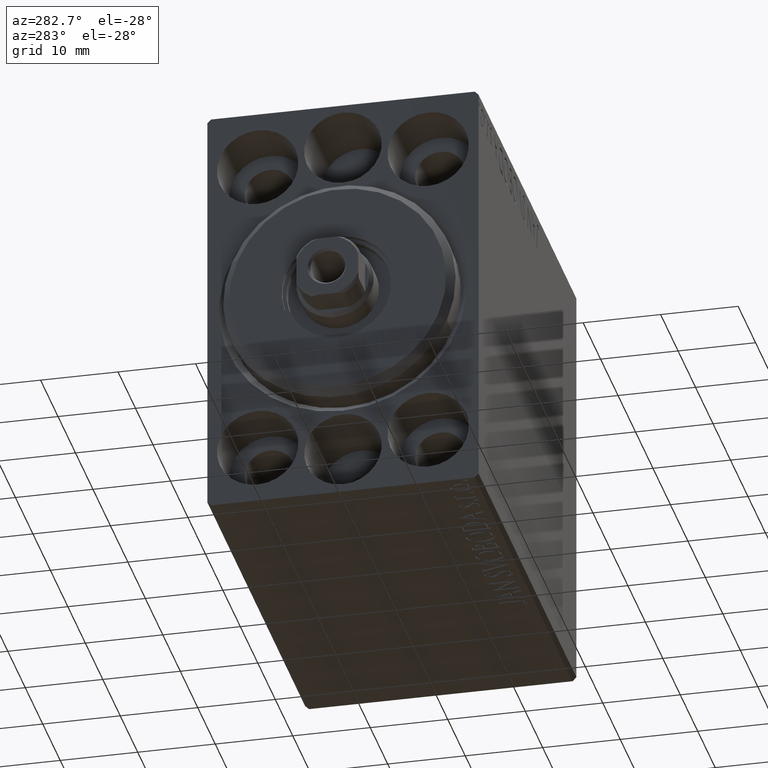
[diagram: clean part render]
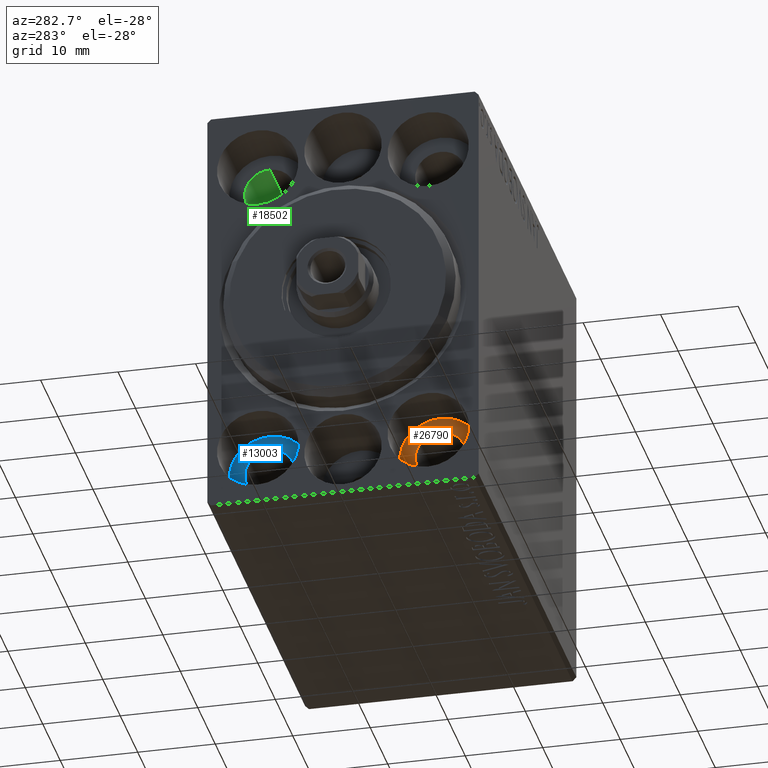
[diagram: same view with three faces highlighted in distinct colors, each labeled with its STEP entity id]
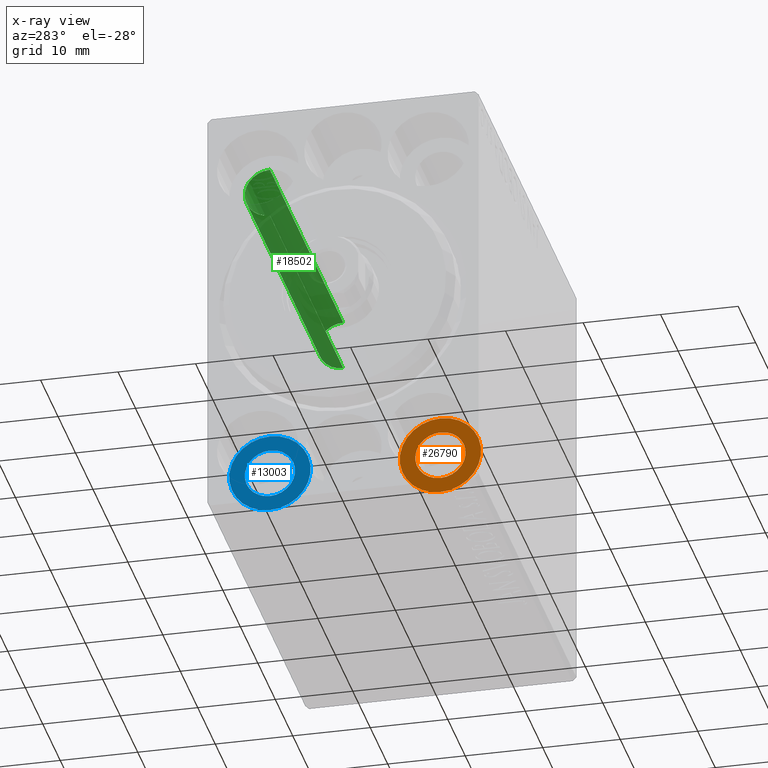
[diagram: x-ray of the same camera — body ghosted, the three highlighted faces saturated]
A machine part, auxiliary view with three faces highlighted in distinct colors.
The next image is the same camera in x-ray (body ghosted, the three faces saturated) — at least one of them is partly hidden behind the body in this view.
Their STEP definitions:

[orange] entity #26790 — the highlighted planar face has unit normal (-1, 0, 0).
#1458 = EDGE_LOOP ( 'NONE', ( #18258, #15358 ) ) ;
#1884 = DIRECTION ( 'NONE',  ( -1.000000000000000000, 0.000000000000000000, 0.000000000000000000 ) ) ;
#4365 = CIRCLE ( 'NONE', #19220, 5.250000000000000888 ) ;
#5809 = DIRECTION ( 'NONE',  ( -1.000000000000000000, 0.000000000000000000, 0.000000000000000000 ) ) ;
#6024 = DIRECTION ( 'NONE',  ( 0.000000000000000000, 0.000000000000000000, 1.000000000000000000 ) ) ;
#6051 = VERTEX_POINT ( 'NONE', #42913 ) ;
#6969 = DIRECTION ( 'NONE',  ( -1.000000000000000000, 0.000000000000000000, 0.000000000000000000 ) ) ;
#8545 = CIRCLE ( 'NONE', #28982, 5.250000000000000888 ) ;
#11522 = AXIS2_PLACEMENT_3D ( 'NONE', #22870, #36389, #6024 ) ;
#11702 = ORIENTED_EDGE ( 'NONE', *, *, #17535, .T. ) ;
#13976 = VERTEX_POINT ( 'NONE', #32333 ) ;
#15358 = ORIENTED_EDGE ( 'NONE', *, *, #27816, .F. ) ;
#16849 = FACE_OUTER_BOUND ( 'NONE', #31404, .T. ) ;
#17535 = EDGE_CURVE ( 'NONE', #33434, #6051, #4365, .T. ) ;
#18075 = DIRECTION ( 'NONE',  ( 0.000000000000000000, 0.000000000000000000, 1.000000000000000000 ) ) ;
#18258 = ORIENTED_EDGE ( 'NONE', *, *, #38337, .F. ) ;
#19220 = AXIS2_PLACEMENT_3D ( 'NONE', #42144, #6969, #34451 ) ;
#22383 = DIRECTION ( 'NONE',  ( -1.000000000000000000, 0.000000000000000000, 0.000000000000000000 ) ) ;
#22646 = PLANE ( 'NONE',  #33250 ) ;
#22870 = CARTESIAN_POINT ( 'NONE',  ( 6.999999999999999112, -11.00000000000000355, -20.00000000000000000 ) ) ;
#24871 = CARTESIAN_POINT ( 'NONE',  ( 7.000000000000000000, -11.00000000000000355, -25.25000000000000000 ) ) ;
#26790 = ADVANCED_FACE ( 'NONE', ( #33709, #16849 ), #22646, .T. ) ;
#27620 = CIRCLE ( 'NONE', #42482, 3.249999999999999556 ) ;
#27816 = EDGE_CURVE ( 'NONE', #42022, #13976, #27620, .T. ) ;
#28982 = AXIS2_PLACEMENT_3D ( 'NONE', #35355, #1884, #18075 ) ;
#29000 = ORIENTED_EDGE ( 'NONE', *, *, #29721, .T. ) ;
#29524 = DIRECTION ( 'NONE',  ( 0.000000000000000000, 0.000000000000000000, 1.000000000000000000 ) ) ;
#29721 = EDGE_CURVE ( 'NONE', #6051, #33434, #8545, .T. ) ;
#30616 = CIRCLE ( 'NONE', #11522, 3.249999999999999556 ) ;
#31404 = EDGE_LOOP ( 'NONE', ( #29000, #11702 ) ) ;
#32333 = CARTESIAN_POINT ( 'NONE',  ( 6.999999999999999112, -11.00000000000000355, -16.75000000000000000 ) ) ;
#33250 = AXIS2_PLACEMENT_3D ( 'NONE', #36166, #5809, #29524 ) ;
#33434 = VERTEX_POINT ( 'NONE', #24871 ) ;
#33709 = FACE_BOUND ( 'NONE', #1458, .T. ) ;
#34451 = DIRECTION ( 'NONE',  ( 0.000000000000000000, 0.000000000000000000, 1.000000000000000000 ) ) ;
#35246 = CARTESIAN_POINT ( 'NONE',  ( 6.999999999999999112, -11.00000000000000355, -20.00000000000000000 ) ) ;
#35355 = CARTESIAN_POINT ( 'NONE',  ( 7.000000000000000000, -11.00000000000000355, -20.00000000000000000 ) ) ;
#35783 = CARTESIAN_POINT ( 'NONE',  ( 6.999999999999999112, -11.00000000000000355, -23.25000000000000000 ) ) ;
#36166 = CARTESIAN_POINT ( 'NONE',  ( 7.000000000000000000, 0.000000000000000000, 0.000000000000000000 ) ) ;
#36389 = DIRECTION ( 'NONE',  ( -1.000000000000000000, 0.000000000000000000, 0.000000000000000000 ) ) ;
#38337 = EDGE_CURVE ( 'NONE', #13976, #42022, #30616, .T. ) ;
#42022 = VERTEX_POINT ( 'NONE', #35783 ) ;
#42144 = CARTESIAN_POINT ( 'NONE',  ( 7.000000000000000000, -11.00000000000000355, -20.00000000000000000 ) ) ;
#42482 = AXIS2_PLACEMENT_3D ( 'NONE', #35246, #22383, #42552 ) ;
#42552 = DIRECTION ( 'NONE',  ( 0.000000000000000000, 0.000000000000000000, 1.000000000000000000 ) ) ;
#42913 = CARTESIAN_POINT ( 'NONE',  ( 7.000000000000000000, -11.00000000000000355, -14.75000000000000000 ) ) ;

[blue] entity #13003 — the highlighted planar face has unit normal (-1, 0, 0).
#720 = AXIS2_PLACEMENT_3D ( 'NONE', #24478, #20473, #6955 ) ;
#1576 = CIRCLE ( 'NONE', #17830, 3.249999999999999556 ) ;
#2251 = EDGE_CURVE ( 'NONE', #12860, #14820, #41590, .T. ) ;
#2579 = DIRECTION ( 'NONE',  ( 0.000000000000000000, 0.000000000000000000, 1.000000000000000000 ) ) ;
#6540 = CARTESIAN_POINT ( 'NONE',  ( 7.000000000000000000, 11.00000000000000355, -25.25000000000000000 ) ) ;
#6955 = DIRECTION ( 'NONE',  ( 0.000000000000000000, 0.000000000000000000, 1.000000000000000000 ) ) ;
#8354 = DIRECTION ( 'NONE',  ( -1.000000000000000000, 0.000000000000000000, 0.000000000000000000 ) ) ;
#8795 = DIRECTION ( 'NONE',  ( -1.000000000000000000, 0.000000000000000000, 0.000000000000000000 ) ) ;
#9071 = ORIENTED_EDGE ( 'NONE', *, *, #15539, .T. ) ;
#9111 = CARTESIAN_POINT ( 'NONE',  ( 6.999999999999999112, 11.00000000000000355, -16.75000000000000000 ) ) ;
#12081 = AXIS2_PLACEMENT_3D ( 'NONE', #36216, #39755, #22918 ) ;
#12125 = DIRECTION ( 'NONE',  ( 0.000000000000000000, 0.000000000000000000, 1.000000000000000000 ) ) ;
#12860 = VERTEX_POINT ( 'NONE', #26496 ) ;
#12898 = AXIS2_PLACEMENT_3D ( 'NONE', #35827, #8795, #2579 ) ;
#13003 = ADVANCED_FACE ( 'NONE', ( #20704, #38206 ), #40854, .T. ) ;
#14183 = CIRCLE ( 'NONE', #12081, 5.250000000000000888 ) ;
#14820 = VERTEX_POINT ( 'NONE', #9111 ) ;
#15539 = EDGE_CURVE ( 'NONE', #39504, #16384, #14183, .T. ) ;
#16384 = VERTEX_POINT ( 'NONE', #6540 ) ;
#17150 = EDGE_LOOP ( 'NONE', ( #25175, #35259 ) ) ;
#17651 = DIRECTION ( 'NONE',  ( 0.000000000000000000, 0.000000000000000000, 1.000000000000000000 ) ) ;
#17830 = AXIS2_PLACEMENT_3D ( 'NONE', #25213, #8354, #12125 ) ;
#18165 = EDGE_CURVE ( 'NONE', #16384, #39504, #34110, .T. ) ;
#18251 = EDGE_CURVE ( 'NONE', #14820, #12860, #1576, .T. ) ;
#20473 = DIRECTION ( 'NONE',  ( -1.000000000000000000, 0.000000000000000000, 0.000000000000000000 ) ) ;
#20704 = FACE_BOUND ( 'NONE', #17150, .T. ) ;
#20762 = ORIENTED_EDGE ( 'NONE', *, *, #18165, .T. ) ;
#22918 = DIRECTION ( 'NONE',  ( 0.000000000000000000, 0.000000000000000000, 1.000000000000000000 ) ) ;
#24478 = CARTESIAN_POINT ( 'NONE',  ( 7.000000000000000000, 11.00000000000000355, -20.00000000000000000 ) ) ;
#25175 = ORIENTED_EDGE ( 'NONE', *, *, #18251, .F. ) ;
#25213 = CARTESIAN_POINT ( 'NONE',  ( 6.999999999999999112, 11.00000000000000355, -20.00000000000000000 ) ) ;
#26496 = CARTESIAN_POINT ( 'NONE',  ( 6.999999999999999112, 11.00000000000000355, -23.25000000000000000 ) ) ;
#28848 = AXIS2_PLACEMENT_3D ( 'NONE', #40487, #30956, #17651 ) ;
#30956 = DIRECTION ( 'NONE',  ( -1.000000000000000000, 0.000000000000000000, 0.000000000000000000 ) ) ;
#34110 = CIRCLE ( 'NONE', #12898, 5.250000000000000888 ) ;
#35259 = ORIENTED_EDGE ( 'NONE', *, *, #2251, .F. ) ;
#35827 = CARTESIAN_POINT ( 'NONE',  ( 7.000000000000000000, 11.00000000000000355, -20.00000000000000000 ) ) ;
#36216 = CARTESIAN_POINT ( 'NONE',  ( 7.000000000000000000, 11.00000000000000355, -20.00000000000000000 ) ) ;
#38206 = FACE_OUTER_BOUND ( 'NONE', #42288, .T. ) ;
#39017 = CARTESIAN_POINT ( 'NONE',  ( 7.000000000000000000, 11.00000000000000355, -14.75000000000000000 ) ) ;
#39504 = VERTEX_POINT ( 'NONE', #39017 ) ;
#39755 = DIRECTION ( 'NONE',  ( -1.000000000000000000, 0.000000000000000000, 0.000000000000000000 ) ) ;
#40487 = CARTESIAN_POINT ( 'NONE',  ( 6.999999999999999112, 11.00000000000000355, -20.00000000000000000 ) ) ;
#40854 = PLANE ( 'NONE',  #720 ) ;
#41590 = CIRCLE ( 'NONE', #28848, 3.249999999999999556 ) ;
#42288 = EDGE_LOOP ( 'NONE', ( #9071, #20762 ) ) ;

[green] entity #18502 — the highlighted cylindrical surface (edge-blend (fillet) strip) has radius 3.25 mm, axis along (-1, -0, -0).
#2156 = EDGE_CURVE ( 'NONE', #29990, #15453, #39031, .T. ) ;
#2320 = DIRECTION ( 'NONE',  ( 0.000000000000000000, 0.000000000000000000, 1.000000000000000000 ) ) ;
#2393 = DIRECTION ( 'NONE',  ( -1.000000000000000000, -0.000000000000000000, -0.000000000000000000 ) ) ;
#3805 = ORIENTED_EDGE ( 'NONE', *, *, #30031, .T. ) ;
#4463 = EDGE_CURVE ( 'NONE', #23283, #8973, #20125, .T. ) ;
#4517 = DIRECTION ( 'NONE',  ( -1.000000000000000000, 0.000000000000000000, 0.000000000000000000 ) ) ;
#5186 = AXIS2_PLACEMENT_3D ( 'NONE', #38530, #2393, #31886 ) ;
#6073 = CARTESIAN_POINT ( 'NONE',  ( 6.999999999999999112, 11.00000000000000355, 16.75000000000000000 ) ) ;
#6819 = DIRECTION ( 'NONE',  ( -1.000000000000000000, -0.000000000000000000, -0.000000000000000000 ) ) ;
#7778 = CIRCLE ( 'NONE', #31837, 3.249999999999999556 ) ;
#8048 = CARTESIAN_POINT ( 'NONE',  ( 6.999999999999999112, 11.00000000000000355, 20.00000000000000000 ) ) ;
#8953 = CARTESIAN_POINT ( 'NONE',  ( 56.00000000000000000, 11.00000000000000355, 20.00000000000000000 ) ) ;
#8973 = VERTEX_POINT ( 'NONE', #14574 ) ;
#9350 = AXIS2_PLACEMENT_3D ( 'NONE', #8953, #39319, #2320 ) ;
#11162 = VECTOR ( 'NONE', #43387, 1000.000000000000000 ) ;
#11844 = FACE_OUTER_BOUND ( 'NONE', #32692, .T. ) ;
#14574 = CARTESIAN_POINT ( 'NONE',  ( 6.999999999999999112, 11.00000000000000355, 23.25000000000000000 ) ) ;
#15453 = VERTEX_POINT ( 'NONE', #6073 ) ;
#16345 = CARTESIAN_POINT ( 'NONE',  ( 56.00000000000000000, 11.00000000000000355, 16.75000000000000000 ) ) ;
#17893 = CIRCLE ( 'NONE', #5186, 3.249999999999999556 ) ;
#18502 = ADVANCED_FACE ( 'NONE', ( #11844 ), #38888, .F. ) ;
#19340 = ORIENTED_EDGE ( 'NONE', *, *, #2156, .F. ) ;
#19972 = ORIENTED_EDGE ( 'NONE', *, *, #4463, .T. ) ;
#20125 = LINE ( 'NONE', #30320, #25374 ) ;
#21972 = EDGE_CURVE ( 'NONE', #23283, #29990, #17893, .T. ) ;
#23283 = VERTEX_POINT ( 'NONE', #26449 ) ;
#25374 = VECTOR ( 'NONE', #6819, 1000.000000000000000 ) ;
#26449 = CARTESIAN_POINT ( 'NONE',  ( 49.00000000000000000, 11.00000000000000355, 23.25000000000000000 ) ) ;
#29990 = VERTEX_POINT ( 'NONE', #38627 ) ;
#30031 = EDGE_CURVE ( 'NONE', #8973, #15453, #7778, .T. ) ;
#30320 = CARTESIAN_POINT ( 'NONE',  ( 56.00000000000000000, 11.00000000000000355, 23.25000000000000000 ) ) ;
#31837 = AXIS2_PLACEMENT_3D ( 'NONE', #8048, #4517, #39063 ) ;
#31859 = ORIENTED_EDGE ( 'NONE', *, *, #21972, .F. ) ;
#31886 = DIRECTION ( 'NONE',  ( 0.000000000000000000, 0.000000000000000000, -1.000000000000000000 ) ) ;
#32692 = EDGE_LOOP ( 'NONE', ( #19340, #31859, #19972, #3805 ) ) ;
#38530 = CARTESIAN_POINT ( 'NONE',  ( 49.00000000000000000, 11.00000000000000355, 20.00000000000000000 ) ) ;
#38627 = CARTESIAN_POINT ( 'NONE',  ( 49.00000000000000000, 11.00000000000000355, 16.75000000000000000 ) ) ;
#38888 = CYLINDRICAL_SURFACE ( 'NONE', #9350, 3.249999999999999556 ) ;
#39031 = LINE ( 'NONE', #16345, #11162 ) ;
#39063 = DIRECTION ( 'NONE',  ( 0.000000000000000000, 0.000000000000000000, 1.000000000000000000 ) ) ;
#39319 = DIRECTION ( 'NONE',  ( -1.000000000000000000, -0.000000000000000000, -0.000000000000000000 ) ) ;
#43387 = DIRECTION ( 'NONE',  ( -1.000000000000000000, -0.000000000000000000, -0.000000000000000000 ) ) ;